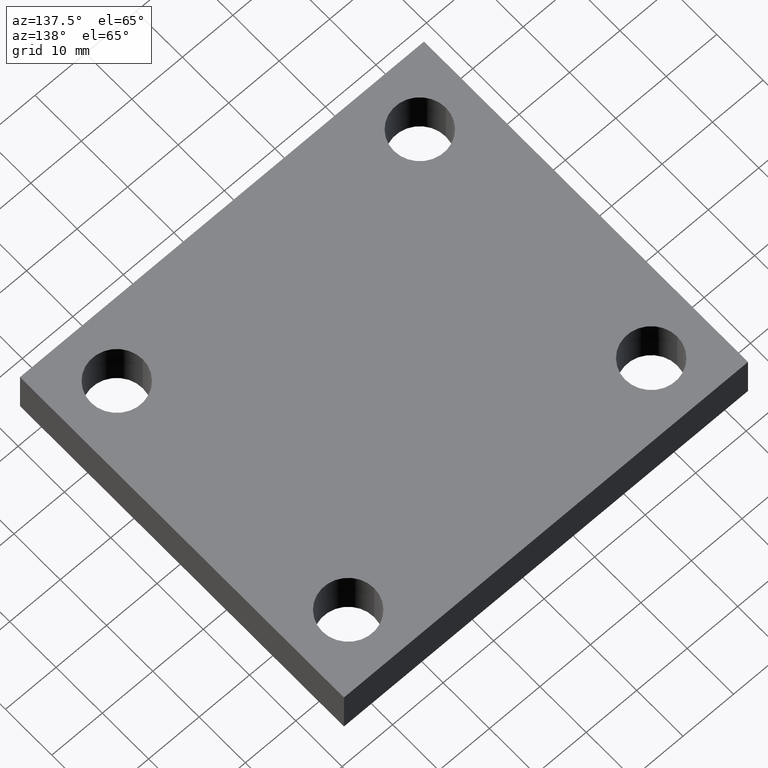
[diagram: clean part render]
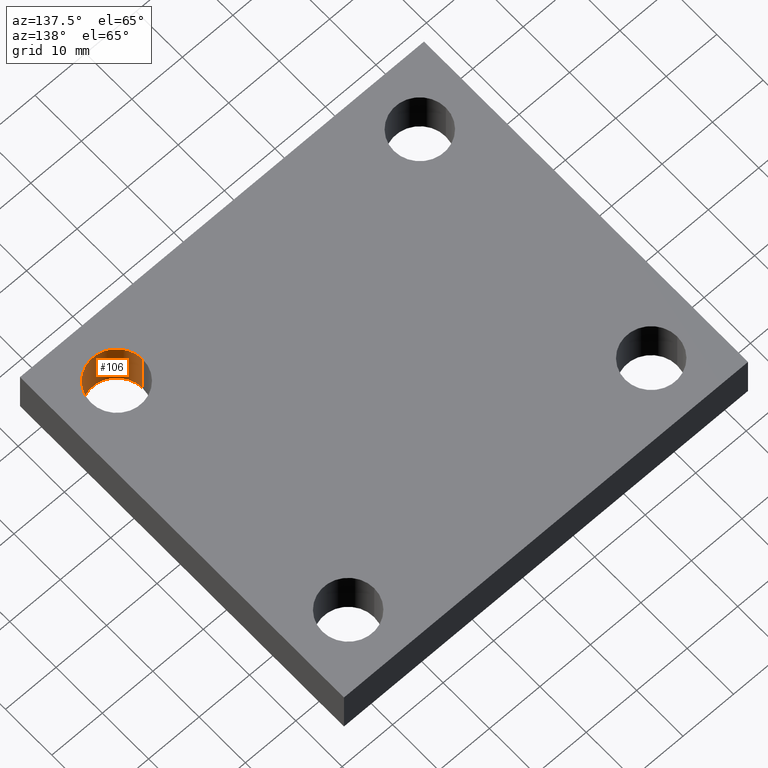
[diagram: same view with one face highlighted and labeled with its STEP entity id]
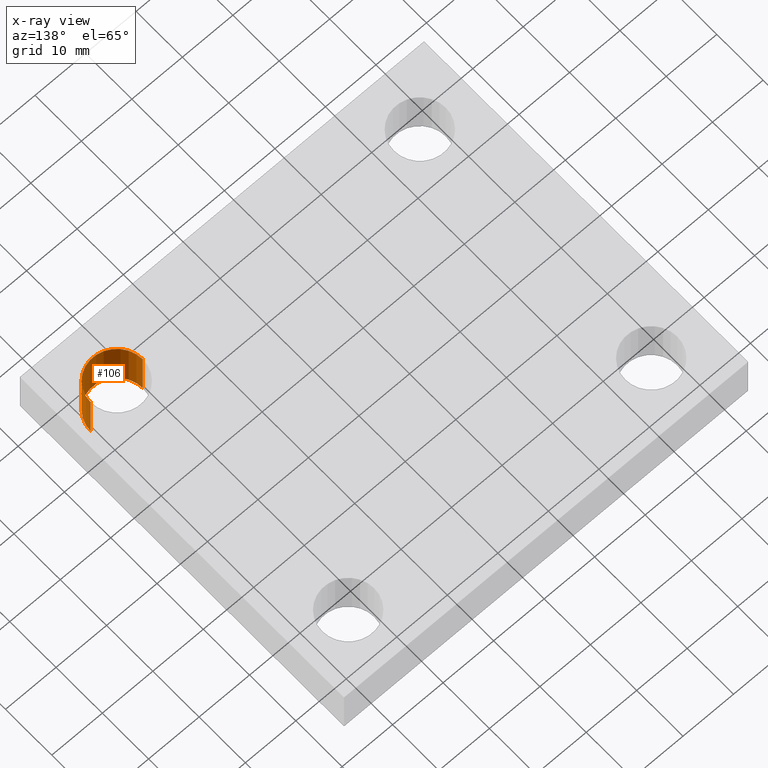
[diagram: x-ray of the same camera — body ghosted, the highlighted face saturated]
A machine part, auxiliary view. The second image highlights one B-rep face of the part: STEP entity #106.
The next image is the same camera in x-ray: the body ghosted, the highlighted face saturated — about 0% of this face is hidden behind the body in this view.
In plain terms, the highlighted face is a freeform B-spline surface patch.
Its self-contained STEP definition (entity closure, byte-faithful):
#44=CARTESIAN_POINT('',(80.789752180801742,-44.027373815230888,10.0));
#45=CARTESIAN_POINT('',(80.789752180801742,-44.027373815230888,0.0));
#46=CARTESIAN_POINT('',(80.789752180801742,-49.177373815230894,10.0));
#47=CARTESIAN_POINT('',(80.789752180801742,-49.177373815230894,0.0));
#48=CARTESIAN_POINT('',(85.939752180801747,-49.177373815230894,10.0));
#49=CARTESIAN_POINT('',(85.939752180801747,-49.177373815230894,0.0));
#50=CARTESIAN_POINT('',(91.089752180801767,-49.177373815230894,10.0));
#51=CARTESIAN_POINT('',(91.089752180801767,-49.177373815230894,0.0));
#52=CARTESIAN_POINT('',(91.089752180801753,-44.027373815230888,10.0));
#53=CARTESIAN_POINT('',(91.089752180801753,-44.027373815230888,0.0));
#54=CARTESIAN_POINT('',(91.089752180801767,-38.877373815230882,10.0));
#55=CARTESIAN_POINT('',(91.089752180801767,-38.877373815230882,0.0));
#56=CARTESIAN_POINT('',(85.939752180801747,-38.877373815230882,10.0));
#57=CARTESIAN_POINT('',(85.939752180801747,-38.877373815230882,0.0));
#58=CARTESIAN_POINT('',(80.789752180801742,-38.877373815230882,10.0));
#59=CARTESIAN_POINT('',(80.789752180801742,-38.877373815230882,0.0));
#60=CARTESIAN_POINT('',(80.789752180801742,-44.027373815230888,10.0));
#61=CARTESIAN_POINT('',(80.789752180801742,-44.027373815230888,0.0));
#69=(BOUNDED_SURFACE()B_SPLINE_SURFACE(1,2,((#44,#46,#48,#50,#52,#54,#56,#58,#60),(#45,#47,#49,#51,#53,#55,#57,#59,#61)),.UNSPECIFIED.,.F.,.T.,.U.)B_SPLINE_SURFACE_WITH_KNOTS((2,2),(3,2,2,2,3),(-20.732190780643325,-18.790443207827792),(0.0,8.089601082993719,16.179202165987437,24.268803248981154,32.358404331974874),.UNSPECIFIED.)GEOMETRIC_REPRESENTATION_ITEM()RATIONAL_B_SPLINE_SURFACE(((1.0,0.707106781186548,1.0,0.707106781186548,1.0,0.707106781186548,1.0,0.707106781186548,1.0),(1.0,0.707106781186548,1.0,0.707106781186548,1.0,0.707106781186548,1.0,0.707106781186548,1.0)))REPRESENTATION_ITEM('')SURFACE());
#70=CARTESIAN_POINT('',(91.089752180801753,-44.027373815230888,0.0));
#71=VERTEX_POINT('',#70);
#72=CARTESIAN_POINT('',(91.089752180801753,-44.027373815230888,10.0));
#73=VERTEX_POINT('',#72);
#74=CARTESIAN_POINT('',(91.089752180801753,-44.027373815230888,0.0));
#75=DIRECTION('',(0.0,0.0,1.0));
#76=VECTOR('',#75,10.0);
#77=LINE('',#74,#76);
#78=EDGE_CURVE('',#71,#73,#77,.T.);
#79=ORIENTED_EDGE('',*,*,#78,.F.);
#80=CARTESIAN_POINT('',(80.789752180801742,-44.027373815230888,0.0));
#81=VERTEX_POINT('',#80);
#82=CARTESIAN_POINT('',(85.939752180801747,-44.027373815230888,0.0));
#83=DIRECTION('',(0.0,0.0,1.0));
#84=DIRECTION('',(1.0,0.0,0.0));
#85=AXIS2_PLACEMENT_3D('',#82,#83,#84);
#86=CIRCLE('',#85,5.150000000000000);
#87=EDGE_CURVE('',#81,#71,#86,.T.);
#88=ORIENTED_EDGE('',*,*,#87,.F.);
#89=CARTESIAN_POINT('',(80.789752180801742,-44.027373815230888,10.0));
#90=VERTEX_POINT('',#89);
#91=CARTESIAN_POINT('',(80.789752180801742,-44.027373815230888,10.0));
#92=DIRECTION('',(0.0,0.0,-1.0));
#93=VECTOR('',#92,10.0);
#94=LINE('',#91,#93);
#95=EDGE_CURVE('',#90,#81,#94,.T.);
#96=ORIENTED_EDGE('',*,*,#95,.F.);
#97=CARTESIAN_POINT('',(85.939752180801747,-44.027373815230888,10.0));
#98=DIRECTION('',(0.0,0.0,-1.0));
#99=DIRECTION('',(1.0,0.0,0.0));
#100=AXIS2_PLACEMENT_3D('',#97,#98,#99);
#101=CIRCLE('',#100,5.150000000000000);
#102=EDGE_CURVE('',#73,#90,#101,.T.);
#103=ORIENTED_EDGE('',*,*,#102,.F.);
#104=EDGE_LOOP('',(#79,#88,#96,#103));
#105=FACE_OUTER_BOUND('',#104,.T.);
#106=ADVANCED_FACE('',(#105),#69,.F.);